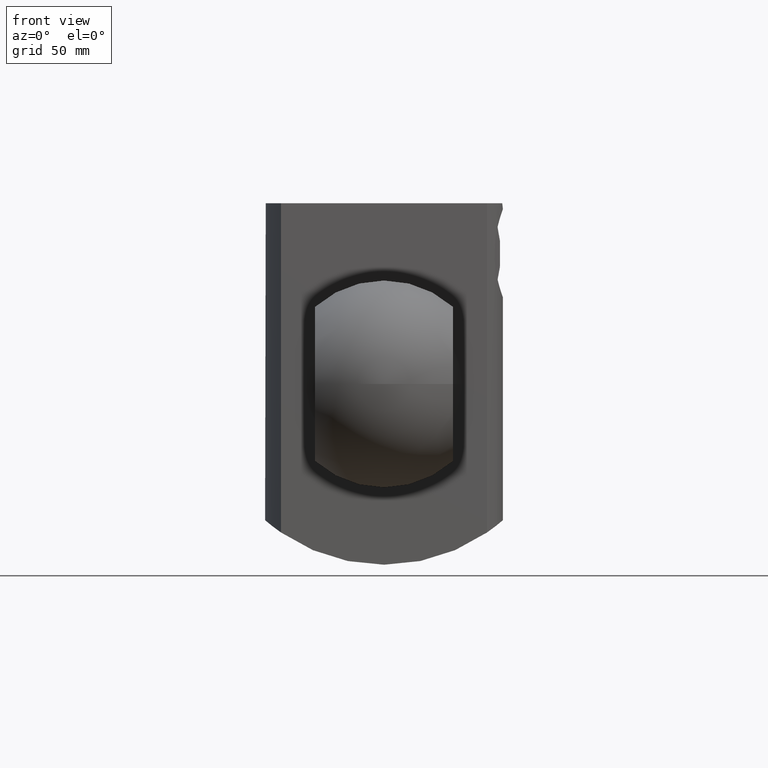
[diagram: clean part render]
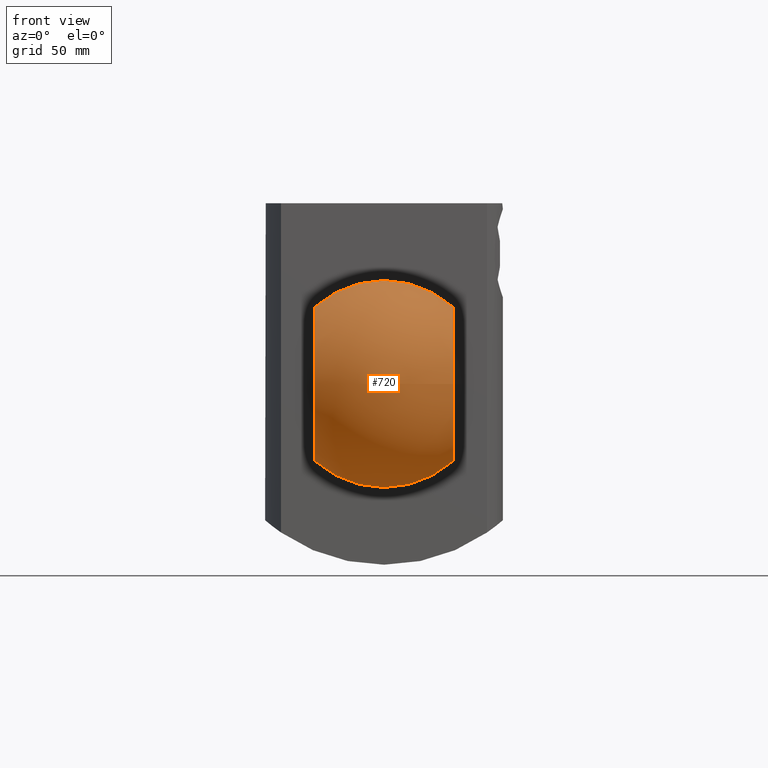
[diagram: same view with one face highlighted and labeled with its STEP entity id]
A machine part, front view. The second image highlights one B-rep face of the part: STEP entity #720.
In plain terms, the highlighted spherical surface has radius 43.5 mm.
Its self-contained STEP definition (entity closure, byte-faithful):
#29=SPHERICAL_SURFACE('',#861,43.5);
#112=FACE_OUTER_BOUND('',#161,.T.);
#161=EDGE_LOOP('',(#650,#651,#652,#653,#654,#655,#656));
#267=CIRCLE('',#833,32.422985673747);
#269=CIRCLE('',#836,32.422985673747);
#272=CIRCLE('',#839,32.422985673747);
#273=CIRCLE('',#841,43.5);
#288=CIRCLE('',#862,43.5);
#289=CIRCLE('',#863,43.5);
#339=VERTEX_POINT('',#1538);
#340=VERTEX_POINT('',#1539);
#343=VERTEX_POINT('',#1547);
#344=VERTEX_POINT('',#1548);
#348=VERTEX_POINT('',#1556);
#358=VERTEX_POINT('',#1592);
#432=EDGE_CURVE('',#339,#340,#267,.T.);
#436=EDGE_CURVE('',#343,#344,#269,.T.);
#441=EDGE_CURVE('',#344,#348,#272,.T.);
#442=EDGE_CURVE('',#339,#348,#273,.T.);
#458=EDGE_CURVE('',#343,#340,#288,.T.);
#459=EDGE_CURVE('',#358,#344,#289,.T.);
#650=ORIENTED_EDGE('',*,*,#432,.T.);
#651=ORIENTED_EDGE('',*,*,#458,.F.);
#652=ORIENTED_EDGE('',*,*,#436,.T.);
#653=ORIENTED_EDGE('',*,*,#459,.F.);
#654=ORIENTED_EDGE('',*,*,#459,.T.);
#655=ORIENTED_EDGE('',*,*,#441,.T.);
#656=ORIENTED_EDGE('',*,*,#442,.F.);
#720=ADVANCED_FACE('',(#112),#29,.T.);
#833=AXIS2_PLACEMENT_3D('',#1540,#1034,#1035);
#836=AXIS2_PLACEMENT_3D('',#1549,#1042,#1043);
#839=AXIS2_PLACEMENT_3D('',#1558,#1050,#1051);
#841=AXIS2_PLACEMENT_3D('',#1560,#1054,#1055);
#861=AXIS2_PLACEMENT_3D('',#1590,#1095,#1096);
#862=AXIS2_PLACEMENT_3D('',#1591,#1097,#1098);
#863=AXIS2_PLACEMENT_3D('',#1593,#1099,#1100);
#1034=DIRECTION('center_axis',(0.,0.,1.));
#1035=DIRECTION('ref_axis',(0.,1.,0.));
#1042=DIRECTION('center_axis',(0.,0.,-1.));
#1043=DIRECTION('ref_axis',(0.,-1.,0.));
#1050=DIRECTION('center_axis',(0.,0.,-1.));
#1051=DIRECTION('ref_axis',(0.,-1.,0.));
#1054=DIRECTION('center_axis',(0.,-1.,0.));
#1055=DIRECTION('ref_axis',(1.,0.,0.));
#1095=DIRECTION('center_axis',(0.,1.,-6.12323399573677E-17));
#1096=DIRECTION('ref_axis',(0.,0.,-1.));
#1097=DIRECTION('center_axis',(0.,-1.,0.));
#1098=DIRECTION('ref_axis',(1.,0.,0.));
#1099=DIRECTION('center_axis',(1.,0.,-1.22464679914735E-16));
#1100=DIRECTION('ref_axis',(1.22464679914735E-16,0.,1.));
#1538=CARTESIAN_POINT('',(32.422985673747,80.5,-29.));
#1539=CARTESIAN_POINT('',(-32.422985673747,80.5,-29.));
#1540=CARTESIAN_POINT('Origin',(-6.73555739531043E-16,80.5,-29.));
#1547=CARTESIAN_POINT('',(-32.422985673747,80.5,29.));
#1548=CARTESIAN_POINT('',(2.87791997799628E-15,112.922985673747,29.));
#1549=CARTESIAN_POINT('Origin',(-6.73555739531043E-16,80.5,29.));
#1556=CARTESIAN_POINT('',(32.422985673747,80.5,29.));
#1558=CARTESIAN_POINT('Origin',(-6.73555739531043E-16,80.5,29.));
#1560=CARTESIAN_POINT('Origin',(1.59333708802372E-15,80.5,0.));
#1590=CARTESIAN_POINT('Origin',(-6.73555739531043E-16,80.5,0.));
#1591=CARTESIAN_POINT('Origin',(1.59333708802372E-15,80.5,0.));
#1592=CARTESIAN_POINT('',(-6.73555739531043E-16,124.,2.66360678814549E-15));
#1593=CARTESIAN_POINT('Origin',(-6.73555739531043E-16,80.5,0.));